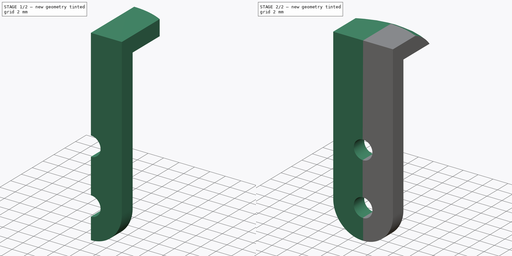
[diagram: build sequence overview — one tinted view per stage of 2, left to right]
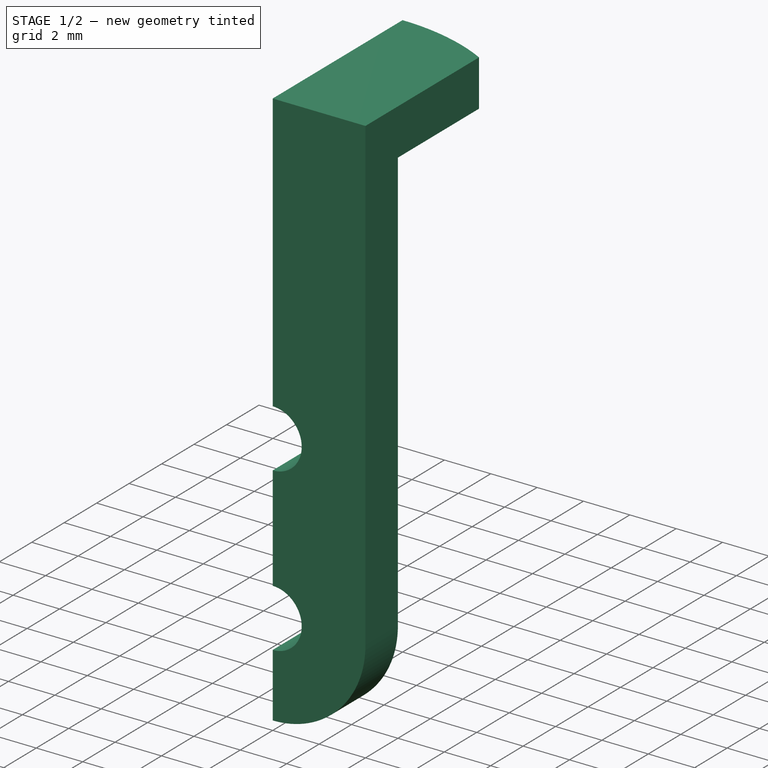
[diagram: stage 1 of 2 — iso view after this stage's code; geometry added in this stage tinted green]
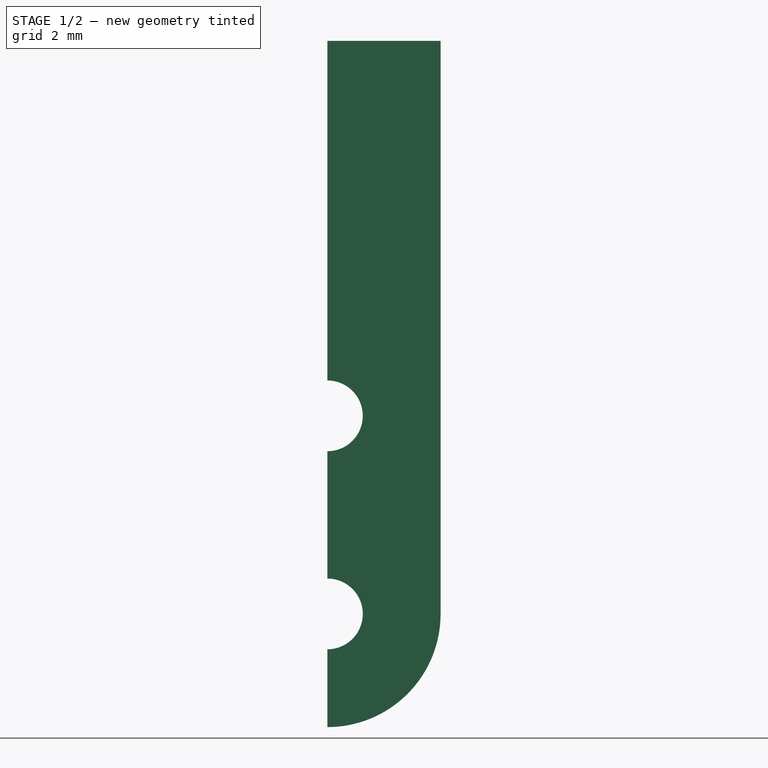
[diagram: stage 1 of 2 — front view after this stage's code; geometry added in this stage tinted green]
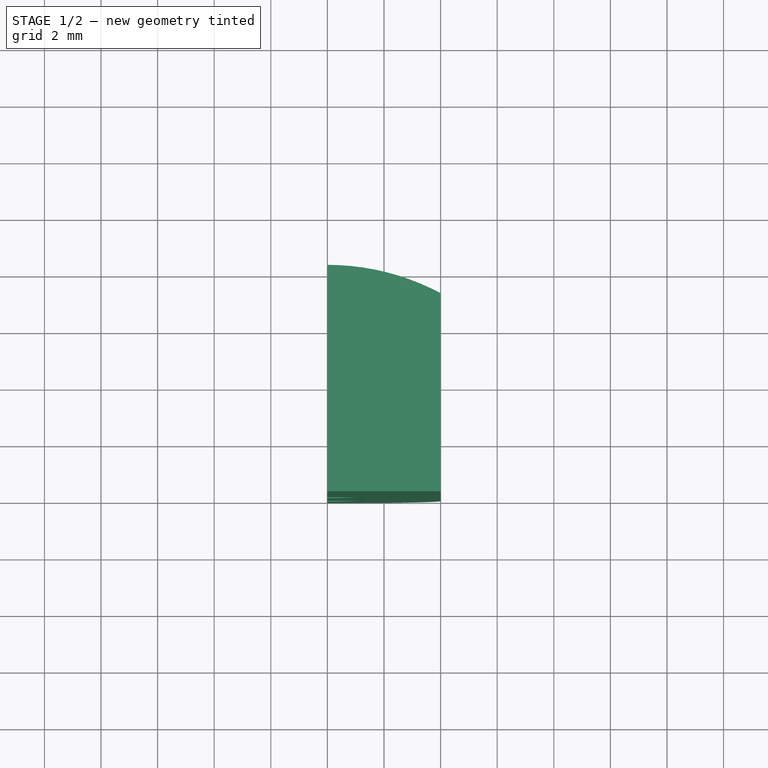
[diagram: stage 1 of 2 — top view after this stage's code; geometry added in this stage tinted green]
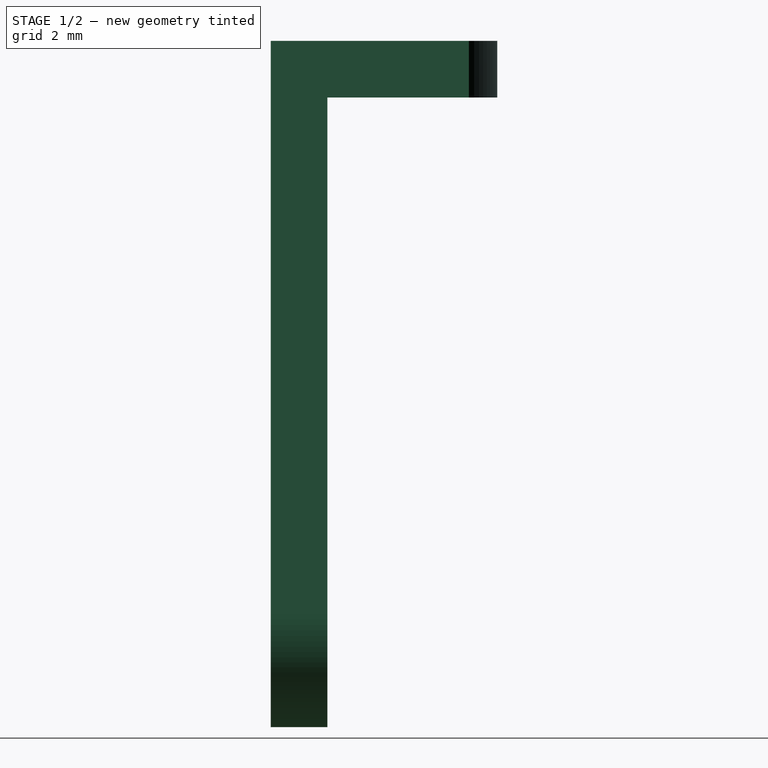
[diagram: stage 1 of 2 — right view after this stage's code; geometry added in this stage tinted green]
FCSTD DOCUMENT  (FreeCAD 0.19R24291 (Git))
Label: зацеп 2
License: All rights reserved
LicenseURL: http://en.wikipedia.org/wiki/All_rights_reserved
objects: Sketcher::SketchObject×3, PartDesign::Pad×2, PartDesign::SubtractivePipe×1, PartDesign::Mirrored×1, PartDesign::Body×1
note: 11 computed .brp shape members not serialized (recipe doc carries the construction recipe); baked Part::Feature solids carry a one-line shape summary decoded from their .brp

FEATURE [Sketcher::SketchObject] Sketch
  FullyConstrained = true
  MapMode = 5
  Placement = pos=(0,0,0) rot=(1,0,0;1.5708rad)
  Support = -> [XZ_Plane]
  sketch-geometry (8):
    g0: ArcOfCircle CenterX=0 CenterY=4 CenterZ=0 NormalX=0 NormalY=0 NormalZ=1 AngleXU=0 Radius=1.25 StartAngle=4.71239 EndAngle=7.85398
    g1: ArcOfCircle CenterX=0 CenterY=11 CenterZ=0 NormalX=0 NormalY=0 NormalZ=1 AngleXU=0 Radius=1.25 StartAngle=4.71239 EndAngle=7.85398
    g2: LineSegment StartX=4e-16 StartY=12.25 StartZ=0 EndX=0 EndY=24.25 EndZ=0
    g3: LineSegment StartX=-2e-16 StartY=9.75 StartZ=0 EndX=-2.9e-15 EndY=5.25 EndZ=0
    g4: ArcOfCircle CenterX=0 CenterY=4 CenterZ=0 NormalX=0 NormalY=0 NormalZ=1 AngleXU=0 Radius=4 StartAngle=4.71239 EndAngle=6.28318
    g5: LineSegment StartX=-2.5e-15 StartY=2.75 StartZ=0 EndX=-7e-16 EndY=0 EndZ=0
    g6: LineSegment StartX=4 StartY=4 StartZ=0 EndX=4 EndY=24.25 EndZ=0
    g7: LineSegment StartX=0 StartY=24.25 StartZ=0 EndX=4 EndY=24.25 EndZ=0
  constraints (25):
    c: PointOnObject(g0,g-2)
    c: PointOnObject(g0,g-2)
    c: PointOnObject(g0,g-2)
    c: PointOnObject(g1,g-2)
    c: PointOnObject(g1,g-2)
    c: PointOnObject(g1,g-2)
    c: Coincident(g2,g1)
    c: PointOnObject(g2,g-2)
    c: Coincident(g3,g1)
    c: Coincident(g3,g0)
    c: Coincident(g4,g0)
    c: Coincident(g4,g-1)
    c: Coincident(g5,g0)
    c: Coincident(g5,g4)
    c: Coincident(g6,g4)
    c: Vertical(g6)
    c: Tangent(g6,g4)
    c: Coincident(g7,g2)
    c: Coincident(g7,g6)
    c: Horizontal(g7)
    c: Diameter(g0) = 2.5
    c: Equal(g1,g0)
    c: Distance(g0,g1) = 7
    c: Distance(g0,g4) = 4
    c: Distance(g2) = 12
FEATURE [PartDesign::Pad] Pad
  Direction = (1,1,1)
  Length = 2
  Length2 = 100
  Placement = pos=(0,0,0) rot=(1,0,0;1.5708rad)
  Profile = -> Sketch
  Type = 0
FEATURE [Sketcher::SketchObject] Sketch001
  ExternalGeometry = -> [Pad]
  FullyConstrained = true
  MapMode = 5
  Placement = pos=(0,2.96e-14,24.25) rot=(0,0,1;3.14159rad)
  Support = -> [Pad]
  sketch-geometry (4):
    g0: LineSegment StartX=-4 StartY=0 StartZ=0 EndX=-4 EndY=-5 EndZ=0
    g1: ArcOfCircle CenterX=0 CenterY=2.5 CenterZ=0 NormalX=0 NormalY=0 NormalZ=1 AngleXU=0 Radius=8.5 StartAngle=4.22243 EndAngle=4.71239
    g2: LineSegment StartX=-1.6e-15 StartY=-6 StartZ=0 EndX=0 EndY=0 EndZ=0
    g3: LineSegment StartX=-4 StartY=0 StartZ=0 EndX=0 EndY=0 EndZ=0
  constraints (11):
    c: Coincident(g0,g-3)
    c: Vertical(g0)
    c: PointOnObject(g1,g-2)
    c: Coincident(g1,g0)
    c: PointOnObject(g1,g-2)
    c: Distance(g0) = 5
    c: Distance(g1,g-1) = 6
    c: Coincident(g2,g1)
    c: Coincident(g2,g-1)
    c: Coincident(g3,g0)
    c: Coincident(g3,g2)
FEATURE [PartDesign::Pad] Pad001
  BaseFeature = -> Pad
  Direction = (1,1,1)
  Length = 2
  Length2 = 100
  Placement = pos=(0,0,0) rot=(1,0,0;1.5708rad)
  Profile = -> Sketch001
  Reversed = true
  Type = 0
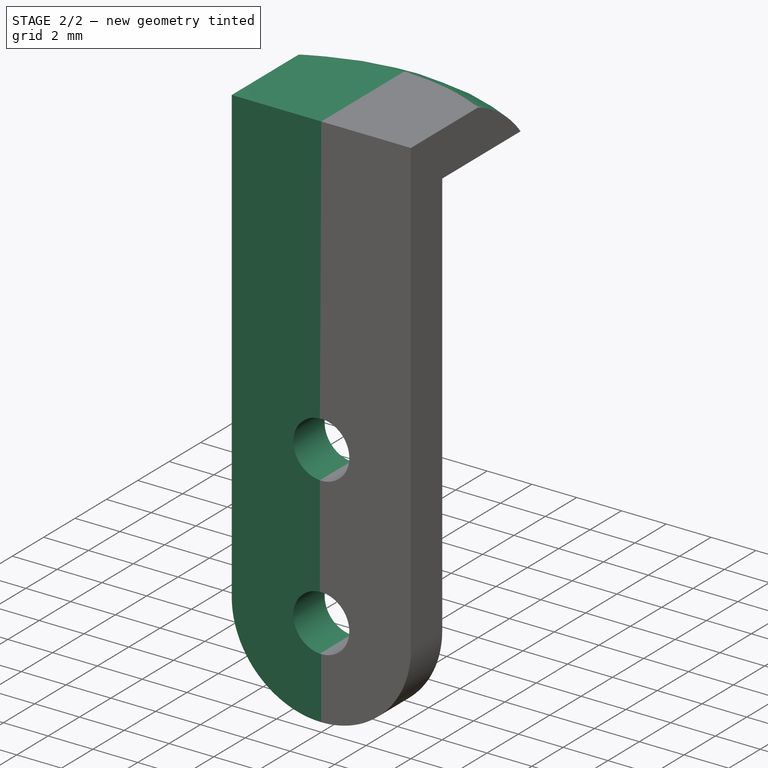
[diagram: stage 2 of 2 — iso view after this stage's code; geometry added in this stage tinted green]
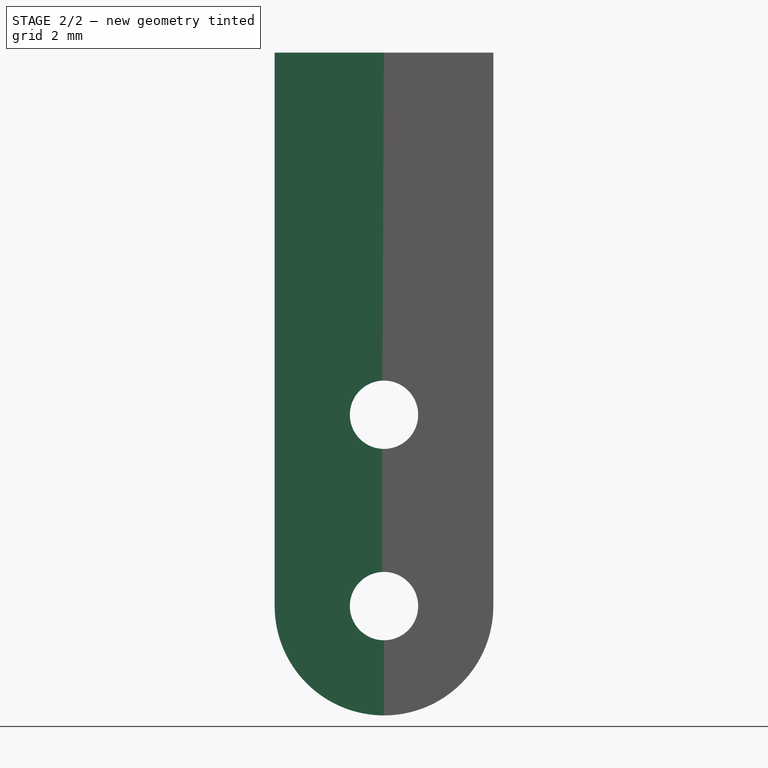
[diagram: stage 2 of 2 — front view after this stage's code; geometry added in this stage tinted green]
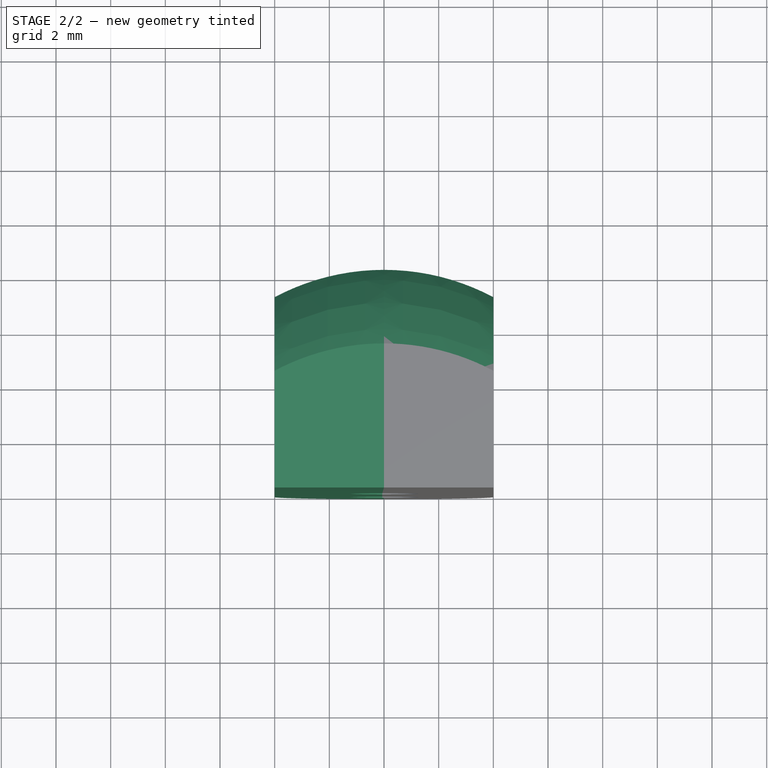
[diagram: stage 2 of 2 — top view after this stage's code; geometry added in this stage tinted green]
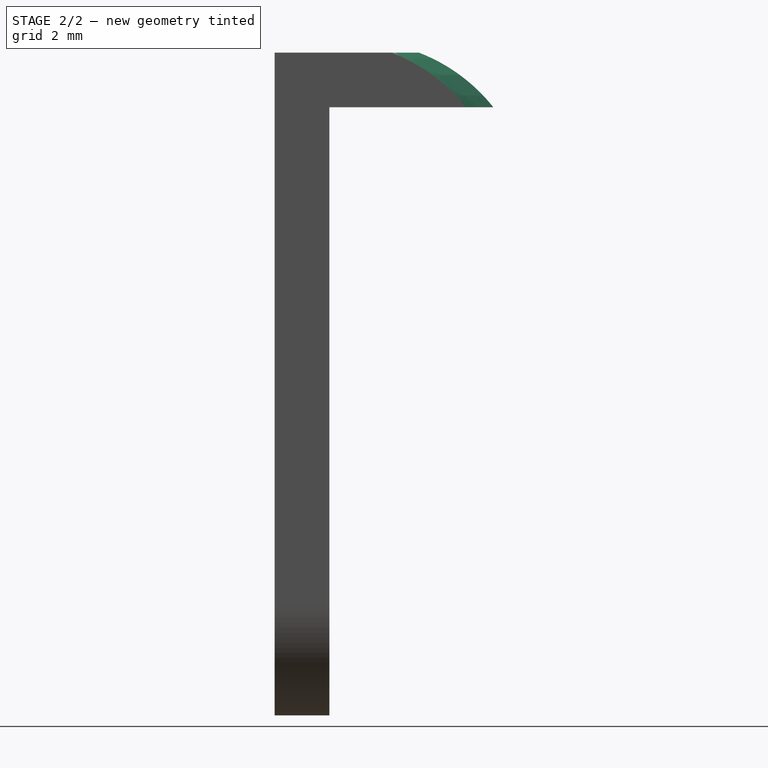
[diagram: stage 2 of 2 — right view after this stage's code; geometry added in this stage tinted green]
FEATURE [Sketcher::SketchObject] Sketch003
  ExternalGeometry = -> [Pad001]
  FullyConstrained = false
  MapMode = 5
  Placement = pos=(4,0,0) rot=(0.707107,0,0.707107;3.14159rad)
  Support = -> [Pad001]
  sketch-geometry (3):
    g0: ArcOfCircle CenterX=18.2563 CenterY=0.0282 CenterZ=0 NormalX=0 NormalY=0 NormalZ=1 AngleXU=0 Radius=6.42123 StartAngle=5.38362 EndAngle=5.9162
    g1: LineSegment StartX=24.25 StartY=-5 StartZ=0 EndX=24.25 EndY=-2.27574 EndZ=0
    g2: LineSegment StartX=22.25 StartY=-5 StartZ=0 EndX=24.25 EndY=-5 EndZ=0
  constraints (6):
    c: Coincident(g0,g-3)
    c: Vertical(g-3,g0)
    c: Coincident(g1,g-3)
    c: Coincident(g1,g0)
    c: Coincident(g2,g0)
    c: Coincident(g2,g1)
FEATURE [PartDesign::SubtractivePipe] SubtractivePipe
  AuxilleryCurvelinear = true
  AuxillerySpineTangent = false
  BaseFeature = -> Pad001
  Binormal = (0,0,0)
  Mode = 1
  Placement = pos=(0,0,0) rot=(1,0,0;1.5708rad)
  Profile = -> Sketch003
  Spine = -> Pad001 [Edge26]
  SpineTangent = false
  Transformation = 0
  Transition = 0
FEATURE [PartDesign::Mirrored] Mirrored
  BaseFeature = -> SubtractivePipe
  MirrorPlane = -> Sketch [V_Axis]
  Originals = -> [Pad,Pad001,SubtractivePipe]
  Placement = pos=(0,0,0) rot=(1,0,0;1.5708rad)
FEATURE [PartDesign::Body] Body
  Group = -> [Sketch,Pad,Sketch001,Pad001,Sketch003,SubtractivePipe,Mirrored]
  Origin = -> Origin
  Tip = -> Mirrored
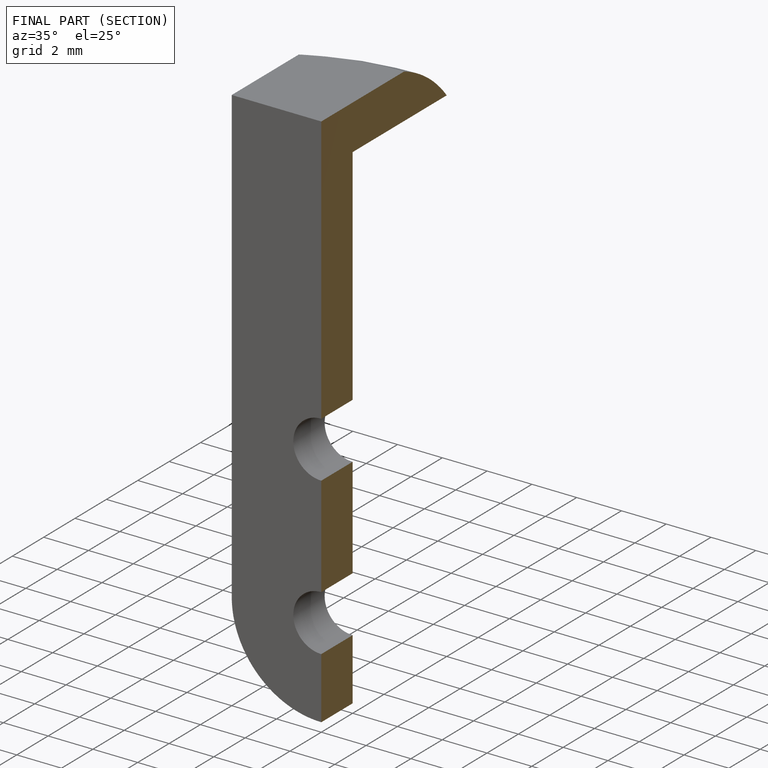
[diagram: finished part — half-section view (interior)]
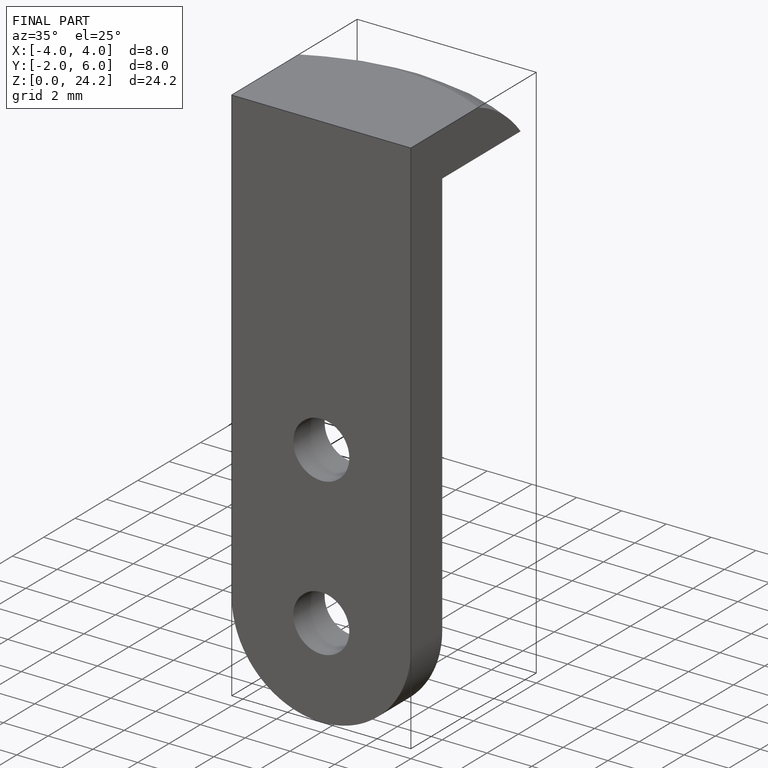
[diagram: finished part — iso view with bounding-box wireframe]
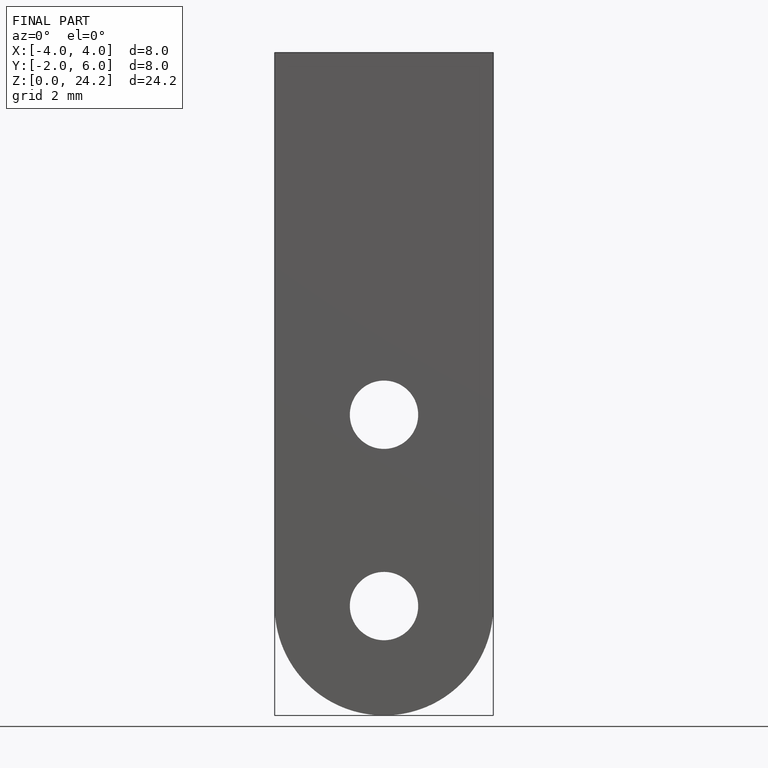
[diagram: finished part — front view with bounding-box wireframe]
